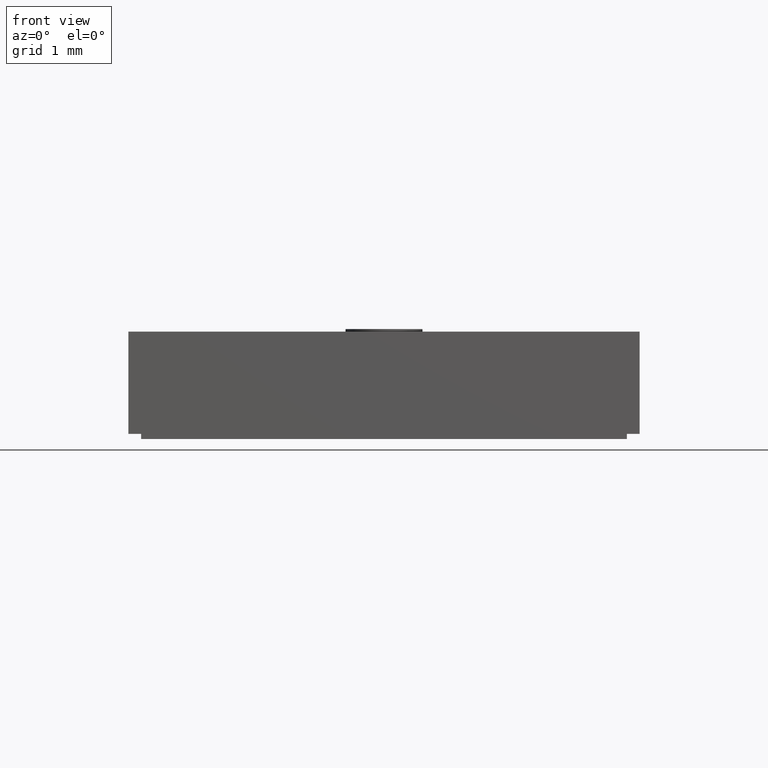
[diagram: clean part render]
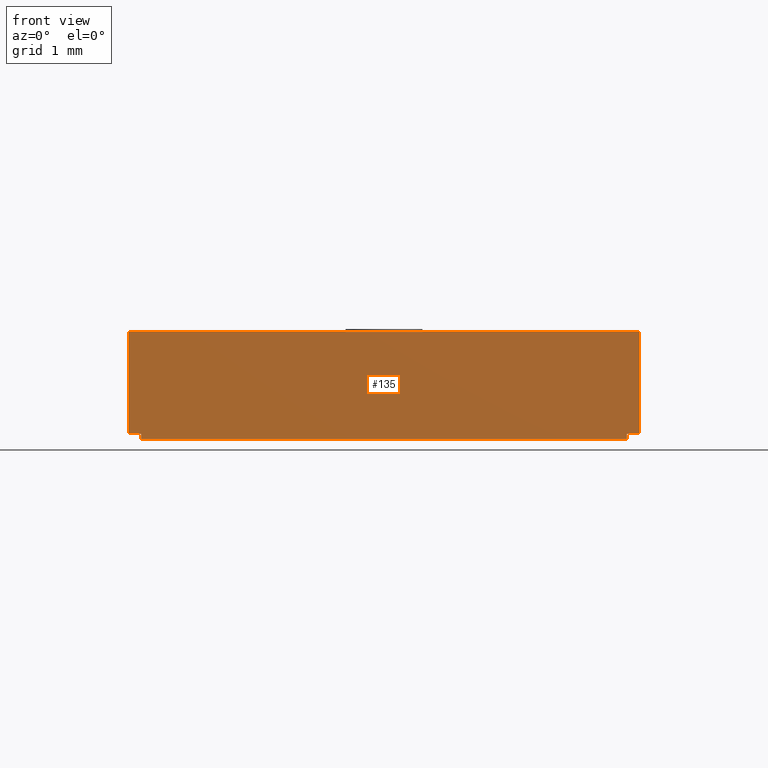
[diagram: same view with one face highlighted and labeled with its STEP entity id]
A machine part, front view. The second image highlights one B-rep face of the part: STEP entity #135.
In plain terms, the highlighted planar face has unit normal (0, -1, 0).
Its self-contained STEP definition (entity closure, byte-faithful):
#9 = CARTESIAN_POINT ( 'NONE',  ( 0.000000000000000000, -0.1000000000000014211, 0.002000000000000000042 ) ) ;
#35 = ORIENTED_EDGE ( 'NONE', *, *, #56, .T. ) ;
#46 = LINE ( 'NONE', #540, #260 ) ;
#56 = EDGE_CURVE ( 'NONE', #607, #537, #64, .T. ) ;
#64 = LINE ( 'NONE', #308, #705 ) ;
#65 = DIRECTION ( 'NONE',  ( -0.000000000000000000, -0.000000000000000000, -1.000000000000000000 ) ) ;
#77 = EDGE_CURVE ( 'NONE', #342, #154, #259, .T. ) ;
#82 = AXIS2_PLACEMENT_3D ( 'NONE', #447, #509, #753 ) ;
#99 = EDGE_LOOP ( 'NONE', ( #372, #608, #516, #35, #319, #610, #440, #415 ) ) ;
#124 = LINE ( 'NONE', #201, #663 ) ;
#127 = CARTESIAN_POINT ( 'NONE',  ( 0.09999999999999430178, -0.1000000000000014211, 0.002000000000000000042 ) ) ;
#134 = PLANE ( 'NONE',  #82 ) ;
#135 = ADVANCED_FACE ( 'NONE', ( #333 ), #134, .T. ) ;
#149 = LINE ( 'NONE', #398, #525 ) ;
#154 = VERTEX_POINT ( 'NONE', #512 ) ;
#156 = CARTESIAN_POINT ( 'NONE',  ( 0.09999999999999430178, -0.1000000000000014211, 0.04199999999999999567 ) ) ;
#158 = DIRECTION ( 'NONE',  ( -1.000000000000000000, 0.000000000000000000, 0.000000000000000000 ) ) ;
#201 = CARTESIAN_POINT ( 'NONE',  ( 0.09999999999999430178, -0.1000000000000014211, 0.04099999999999999478 ) ) ;
#203 = VECTOR ( 'NONE', #261, 39.37007874015748143 ) ;
#210 = CARTESIAN_POINT ( 'NONE',  ( -0.09999999999999430178, -0.1000000000000014211, 0.04199999999999999567 ) ) ;
#211 = CARTESIAN_POINT ( 'NONE',  ( 0.09499999999999886313, -0.1000000000000014211, 0.002000000000000000042 ) ) ;
#223 = CARTESIAN_POINT ( 'NONE',  ( 0.09499999999999886313, -0.1000000000000014211, 0.002000000000000000042 ) ) ;
#241 = VERTEX_POINT ( 'NONE', #278 ) ;
#259 = LINE ( 'NONE', #211, #324 ) ;
#260 = VECTOR ( 'NONE', #354, 39.37007874015748143 ) ;
#261 = DIRECTION ( 'NONE',  ( -1.000000000000000000, 0.000000000000000000, 0.000000000000000000 ) ) ;
#278 = CARTESIAN_POINT ( 'NONE',  ( -0.09499999999999886313, -0.1000000000000014211, 0.002000000000000000042 ) ) ;
#286 = VERTEX_POINT ( 'NONE', #707 ) ;
#291 = EDGE_CURVE ( 'NONE', #286, #154, #719, .T. ) ;
#308 = CARTESIAN_POINT ( 'NONE',  ( -0.09999999999999430178, -0.1000000000000014211, 0.04099999999999999478 ) ) ;
#314 = LINE ( 'NONE', #9, #203 ) ;
#316 = VERTEX_POINT ( 'NONE', #156 ) ;
#319 = ORIENTED_EDGE ( 'NONE', *, *, #394, .F. ) ;
#324 = VECTOR ( 'NONE', #619, 39.37007874015748143 ) ;
#330 = LINE ( 'NONE', #708, #564 ) ;
#333 = FACE_OUTER_BOUND ( 'NONE', #99, .T. ) ;
#342 = VERTEX_POINT ( 'NONE', #223 ) ;
#354 = DIRECTION ( 'NONE',  ( 1.000000000000000000, 0.000000000000000000, 0.000000000000000000 ) ) ;
#372 = ORIENTED_EDGE ( 'NONE', *, *, #634, .F. ) ;
#393 = DIRECTION ( 'NONE',  ( -0.000000000000000000, -0.000000000000000000, -1.000000000000000000 ) ) ;
#394 = EDGE_CURVE ( 'NONE', #241, #537, #314, .T. ) ;
#398 = CARTESIAN_POINT ( 'NONE',  ( 0.000000000000000000, -0.1000000000000014211, 0.002000000000000000042 ) ) ;
#415 = ORIENTED_EDGE ( 'NONE', *, *, #77, .F. ) ;
#437 = EDGE_CURVE ( 'NONE', #316, #773, #124, .T. ) ;
#440 = ORIENTED_EDGE ( 'NONE', *, *, #291, .T. ) ;
#447 = CARTESIAN_POINT ( 'NONE',  ( 0.000000000000000000, -0.1000000000000014211, 0.04099999999999999478 ) ) ;
#476 = DIRECTION ( 'NONE',  ( 1.000000000000000000, -0.000000000000000000, -0.000000000000000000 ) ) ;
#495 = CARTESIAN_POINT ( 'NONE',  ( -0.09999999999999430178, -0.1000000000000014211, 0.002000000000000000042 ) ) ;
#509 = DIRECTION ( 'NONE',  ( 0.000000000000000000, -1.000000000000000000, 0.000000000000000000 ) ) ;
#512 = CARTESIAN_POINT ( 'NONE',  ( 0.09499999999999886313, -0.1000000000000014211, 0.000000000000000000 ) ) ;
#516 = ORIENTED_EDGE ( 'NONE', *, *, #752, .F. ) ;
#525 = VECTOR ( 'NONE', #158, 39.37007874015748143 ) ;
#537 = VERTEX_POINT ( 'NONE', #495 ) ;
#540 = CARTESIAN_POINT ( 'NONE',  ( 0.000000000000000000, -0.1000000000000014211, 0.04199999999999999567 ) ) ;
#546 = DIRECTION ( 'NONE',  ( -0.000000000000000000, -0.000000000000000000, -1.000000000000000000 ) ) ;
#564 = VECTOR ( 'NONE', #393, 39.37007874015748143 ) ;
#592 = CARTESIAN_POINT ( 'NONE',  ( 0.09499999999999886313, -0.1000000000000014211, 0.000000000000000000 ) ) ;
#603 = VECTOR ( 'NONE', #476, 39.37007874015748143 ) ;
#607 = VERTEX_POINT ( 'NONE', #210 ) ;
#608 = ORIENTED_EDGE ( 'NONE', *, *, #437, .F. ) ;
#610 = ORIENTED_EDGE ( 'NONE', *, *, #625, .T. ) ;
#619 = DIRECTION ( 'NONE',  ( -0.000000000000000000, -0.000000000000000000, -1.000000000000000000 ) ) ;
#625 = EDGE_CURVE ( 'NONE', #241, #286, #330, .T. ) ;
#634 = EDGE_CURVE ( 'NONE', #773, #342, #149, .T. ) ;
#663 = VECTOR ( 'NONE', #65, 39.37007874015748143 ) ;
#705 = VECTOR ( 'NONE', #546, 39.37007874015748143 ) ;
#707 = CARTESIAN_POINT ( 'NONE',  ( -0.09499999999999886313, -0.1000000000000014211, 0.000000000000000000 ) ) ;
#708 = CARTESIAN_POINT ( 'NONE',  ( -0.09499999999999886313, -0.1000000000000014211, 0.002000000000000000042 ) ) ;
#719 = LINE ( 'NONE', #592, #603 ) ;
#752 = EDGE_CURVE ( 'NONE', #607, #316, #46, .T. ) ;
#753 = DIRECTION ( 'NONE',  ( 0.000000000000000000, -0.000000000000000000, -1.000000000000000000 ) ) ;
#773 = VERTEX_POINT ( 'NONE', #127 ) ;